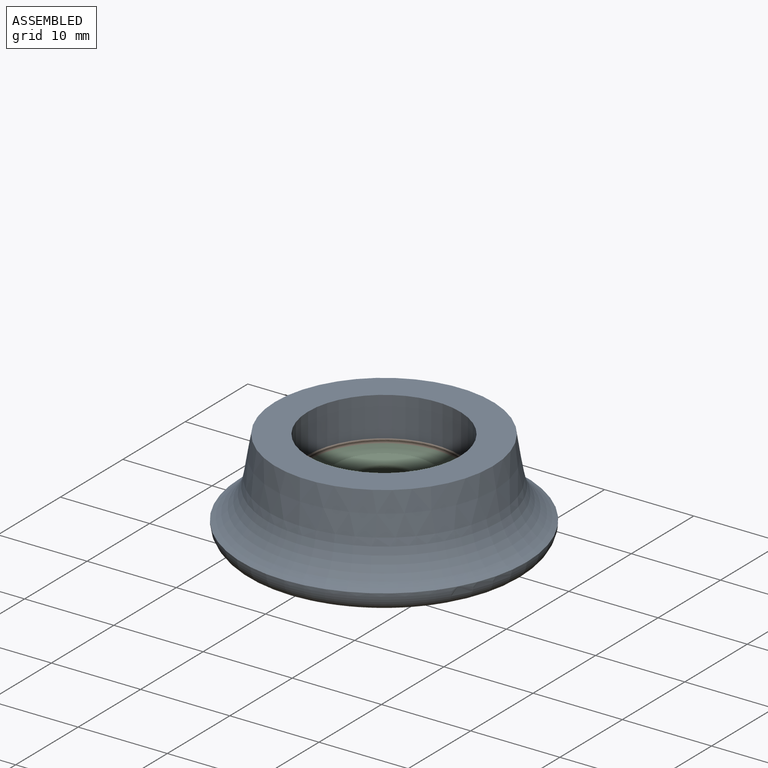
[diagram: assembled view]
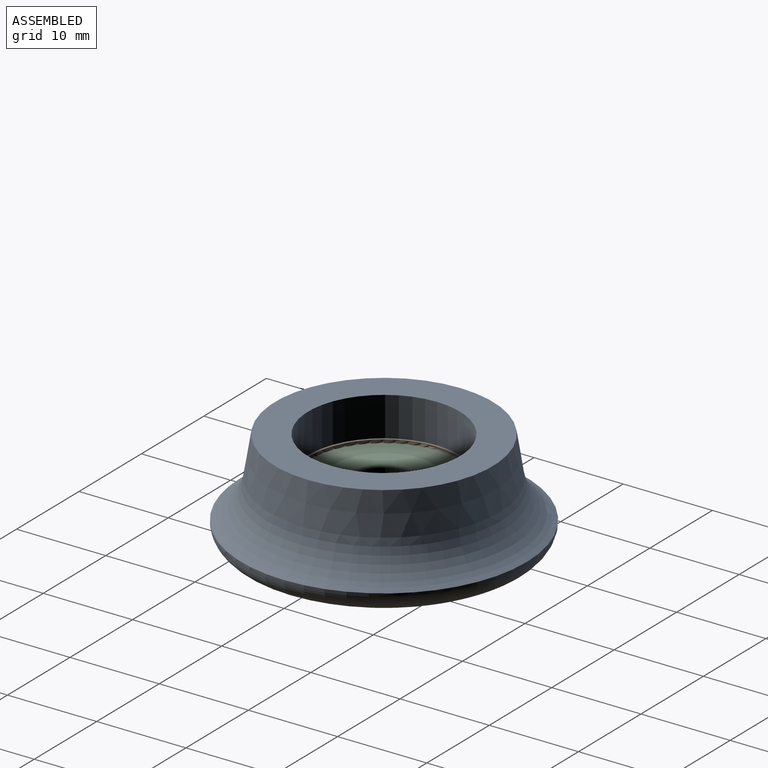
[diagram: assembled view, second angle]
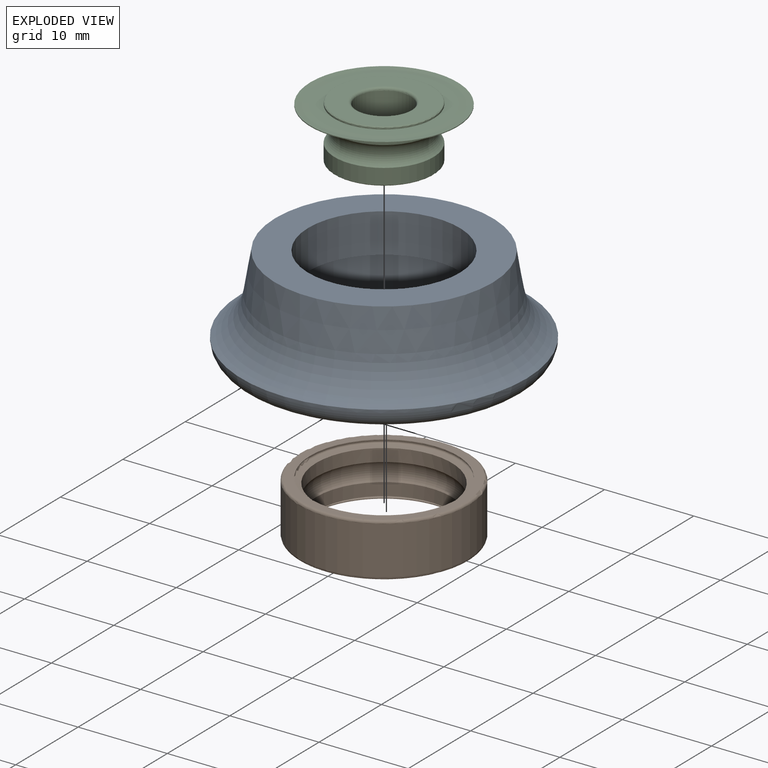
[diagram: exploded view]
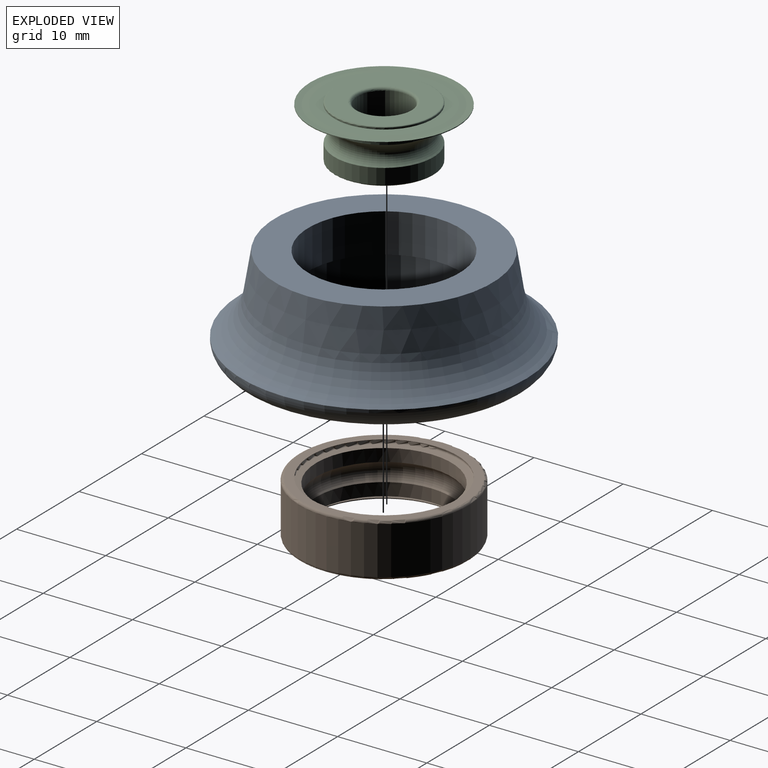
[diagram: exploded view, second angle]
ASSEMBLY  parts=3 mates=2
PART A: 10 faces, bbox 40.4x40.4x11 mm
  f0: plane 19x19mm, normal (0,0,-1), area 56.5mm2, adj f1,f9
  f1: cylinder r=8.5mm len=17mm, axis (0,0,1), area 235mm2, adj f0,f2
  f2: plane 24.4x24.4mm, normal (0,0,1), area 240.6mm2, adj f1,f3
  f3: cone r=12.2mm half-angle=9.3deg, axis (0,0,-1), area 359.2mm2, adj f2,f4
  f4: torus R=18.65mm, axis (0,0,1), area 479.8mm2, adj f3,f5
  f5: torus R=13.7mm, axis (0,0,1), area 344.2mm2, adj f4,f6
  f6: plane 27.4x27.4mm, normal (0,0,-1), area 320.8mm2, adj f5,f7
  f7: cylinder r=9.25mm len=18.5mm, axis (0,0,1), area 34.9mm2, adj f6,f8
  f8: plane 19x19mm, normal (0,0,1), area 14.7mm2, adj f7,f9
  f9: cylinder r=9.5mm len=19mm, axis (0,0,1), area 358.1mm2, adj f0,f8
PART B: 14 faces, bbox 6x20.6x20.6 mm
  f0: cone r=0mm half-angle=80deg, axis (1,0,0), area 32.9mm2, adj f1,f2
  f1: torus R=8.25mm, axis (1,0,0), area 29.7mm2, adj f0,f3
  f2: cylinder r=7.6mm len=15.2mm, axis (1,0,0), area 67.6mm2, adj f0,f4
  f3: cylinder r=8.25mm len=16.5mm, axis (1,0,0), area 4.7mm2, adj f1,f5
  f4: torus R=6.5mm, axis (1,0,0), area 110.8mm2, adj f2,f6
  f5: plane 18.4x18.4mm, normal (1,0,0), area 52.1mm2, adj f3,f7
  f6: cylinder r=7.6mm len=15.2mm, axis (1,0,0), area 67.6mm2, adj f4,f8
  f7: torus R=9.2mm, axis (1,0,0), area 27.8mm2, adj f5,f9
  f8: cone r=0mm half-angle=80deg, axis (-1,0,0), area 32.9mm2, adj f6,f10
  f9: cylinder r=9.5mm len=19mm, axis (1,0,0), area 322.3mm2, adj f7,f11
  f10: torus R=8.25mm, axis (1,0,0), area 29.7mm2, adj f8,f12
  f11: torus R=9.2mm, axis (1,0,0), area 27.8mm2, adj f9,f13
  f12: cylinder r=8.25mm len=16.5mm, axis (1,0,0), area 4.7mm2, adj f10,f13
  f13: plane 18.4x18.4mm, normal (-1,0,0), area 52.1mm2, adj f11,f12
PART C: 18 faces, bbox 6x16.5x16.5 mm
  f0: plane 13.8x13.8mm, normal (-1,0,0), area 52.8mm2, adj f1,f2
  f1: cylinder r=5.55mm len=11.1mm, axis (1,0,0), area 5.9mm2, adj f0,f3
  f2: cone r=0mm half-angle=86.2deg, axis (1,0,0), area 30.8mm2, adj f0,f4
  f3: torus R=5.45mm, axis (1,0,0), area 5.4mm2, adj f1,f5
  f4: cone r=0mm half-angle=86.2deg, axis (-1,0,0), area 33.6mm2, adj f2,f6
  f5: plane 10.9x10.9mm, normal (-1,0,0), area 59.1mm2, adj f3,f7
  f6: cylinder r=8.25mm len=16.5mm, axis (1,0,0), area 4.7mm2, adj f4,f8
  f7: torus R=3.3mm, axis (1,0,0), area 9.2mm2, adj f5,f9
  f8: cone r=0mm half-angle=82.4deg, axis (-1,0,0), area 33.9mm2, adj f6,f10
  f9: cylinder r=3mm len=6mm, axis (1,0,0), area 101.8mm2, adj f7,f11
  f10: plane 15.15x15.15mm, normal (1,0,0), area 30.7mm2, adj f8,f12
  f11: torus R=3.3mm, axis (1,0,0), area 9.2mm2, adj f9,f13
  f12: cone r=0mm half-angle=86.2deg, axis (1,0,0), area 52.9mm2, adj f10,f14
  f13: plane 10.9x10.9mm, normal (1,0,0), area 59.1mm2, adj f11,f15
  f14: cylinder r=5.55mm len=11.1mm, axis (1,0,0), area 51.6mm2, adj f12,f17
  f15: torus R=5.45mm, axis (1,0,0), area 5.4mm2, adj f13,f16
  f16: cylinder r=5.55mm len=11.1mm, axis (1,0,0), area 60.6mm2, adj f15,f17
  f17: torus R=6.5mm, axis (1,0,0), area 86.5mm2, adj f14,f16
PLACE A t=(6.34,5.64,-1.93)mm
PLACE B rot(axis=(0,1,0),90deg) t=(6.34,5.64,4.07)mm
PLACE C rot(axis=(0,1,0),90deg) t=(6.34,5.64,3.97)mm
MATE fastened B.f0 <-> A.f1  axis (0,0,1) through (6.34,5.64,4.07)mm
MATE fastened C.f1 <-> B.f0  axis (0,0,1) through (6.34,5.64,3.56)mm
